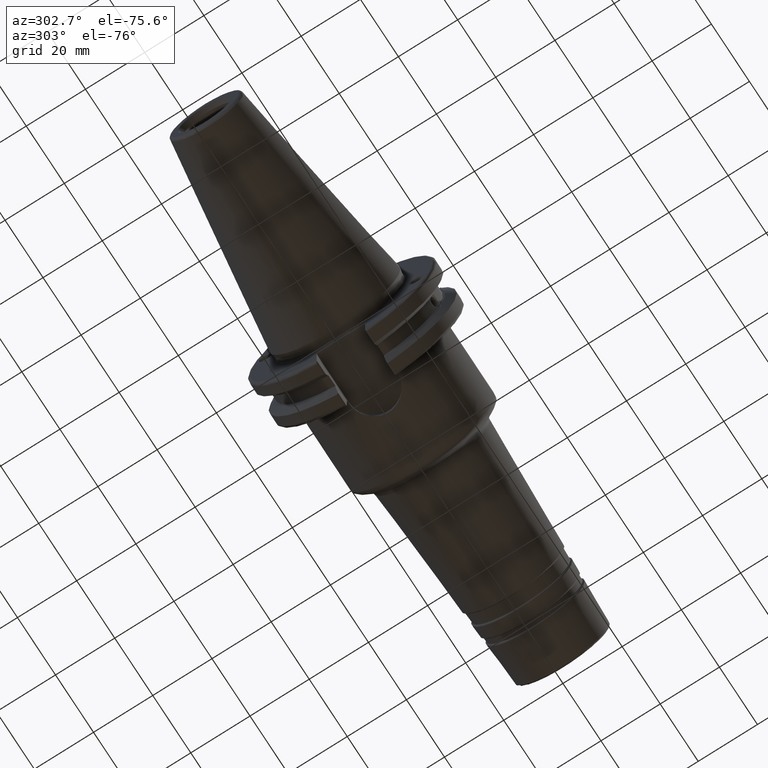
[diagram: clean part render]
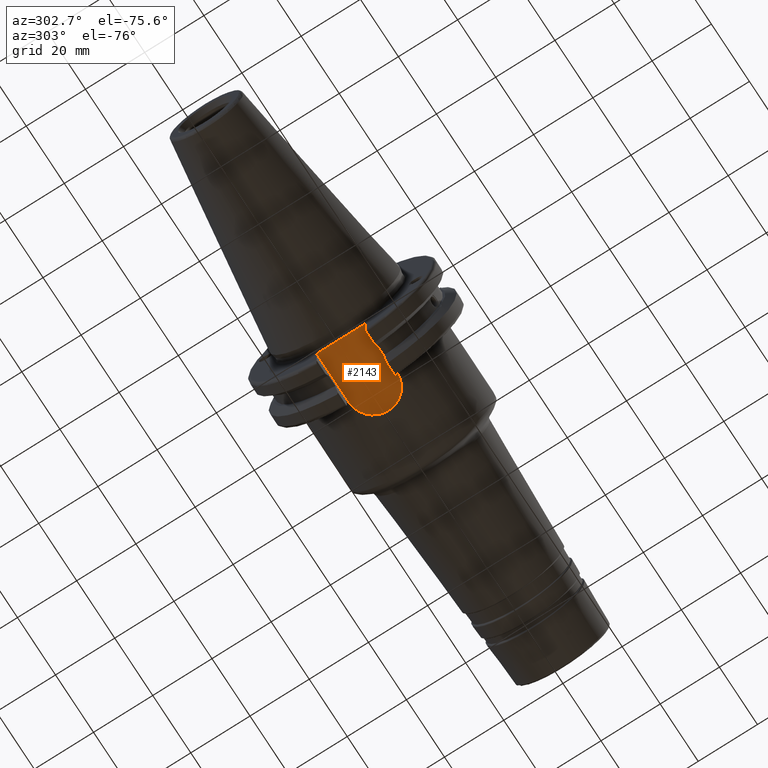
[diagram: same view with one face highlighted and labeled with its STEP entity id]
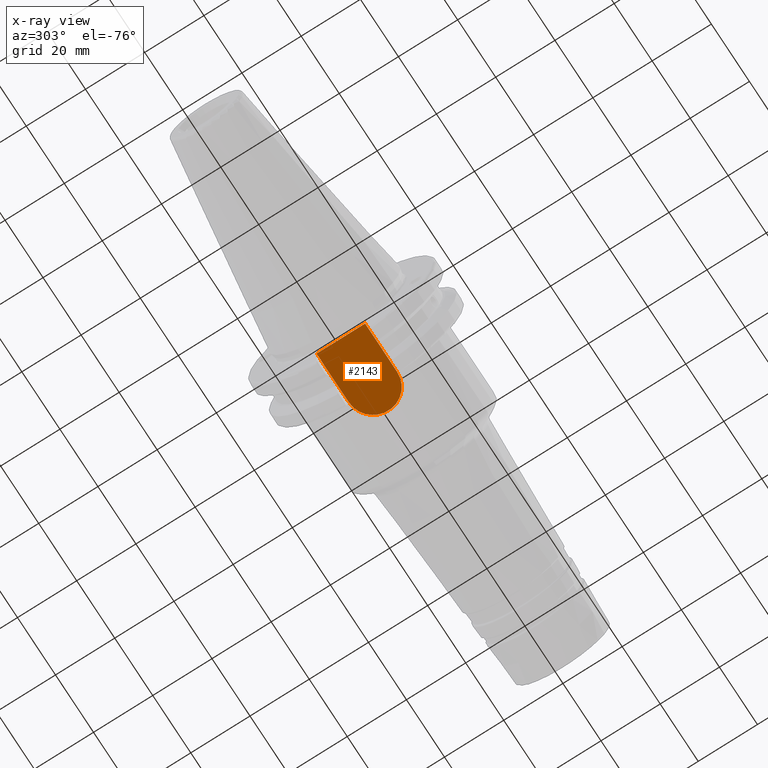
[diagram: x-ray of the same camera — body ghosted, the highlighted face saturated]
A machine part, auxiliary view. The second image highlights one B-rep face of the part: STEP entity #2143.
The next image is the same camera in x-ray: the body ghosted, the highlighted face saturated — about 0% of this face is hidden behind the body in this view.
In plain terms, the highlighted planar face has unit normal (0, 0, 1).
Its self-contained STEP definition (entity closure, byte-faithful):
#71=PLANE('',#2445);
#262=FACE_OUTER_BOUND('',#381,.T.);
#381=EDGE_LOOP('',(#1909,#1910,#1911,#1912));
#472=LINE('',#3921,#571);
#476=LINE('',#3971,#575);
#486=LINE('',#4052,#585);
#571=VECTOR('',#2997,10.);
#575=VECTOR('',#3015,10.);
#585=VECTOR('',#3033,10.);
#614=CIRCLE('',#2200,8.19);
#793=VERTEX_POINT('',#3299);
#794=VERTEX_POINT('',#3301);
#961=VERTEX_POINT('',#3902);
#970=VERTEX_POINT('',#3919);
#1037=EDGE_CURVE('',#794,#793,#614,.T.);
#1269=EDGE_CURVE('',#970,#961,#472,.T.);
#1281=EDGE_CURVE('',#970,#794,#476,.T.);
#1302=EDGE_CURVE('',#793,#961,#486,.T.);
#1909=ORIENTED_EDGE('',*,*,#1269,.F.);
#1910=ORIENTED_EDGE('',*,*,#1281,.T.);
#1911=ORIENTED_EDGE('',*,*,#1037,.T.);
#1912=ORIENTED_EDGE('',*,*,#1302,.T.);
#2143=ADVANCED_FACE('',(#262),#71,.F.);
#2200=AXIS2_PLACEMENT_3D('',#3302,#2514,#2515);
#2445=AXIS2_PLACEMENT_3D('',#4139,#3082,#3083);
#2514=DIRECTION('center_axis',(0.,0.,-1.));
#2515=DIRECTION('ref_axis',(0.,1.,0.));
#2997=DIRECTION('',(0.,-1.,0.));
#3015=DIRECTION('',(1.,-2.63163976207444E-16,0.));
#3033=DIRECTION('',(-1.,6.57909940518611E-17,0.));
#3082=DIRECTION('center_axis',(0.,0.,1.));
#3083=DIRECTION('ref_axis',(1.,0.,0.));
#3299=CARTESIAN_POINT('',(20.05,-8.19,-22.6));
#3301=CARTESIAN_POINT('',(20.05,8.19,-22.6));
#3302=CARTESIAN_POINT('Origin',(20.05,-3.91452606313721E-16,-22.6));
#3902=CARTESIAN_POINT('',(3.175,-8.19,-22.6));
#3919=CARTESIAN_POINT('',(3.175,8.19,-22.6));
#3921=CARTESIAN_POINT('',(3.175,15.875,-22.6));
#3971=CARTESIAN_POINT('',(3.175,8.19,-22.6));
#4052=CARTESIAN_POINT('',(20.05,-8.19,-22.6));
#4139=CARTESIAN_POINT('Origin',(15.7075,-5.55111512312578E-16,-22.6));